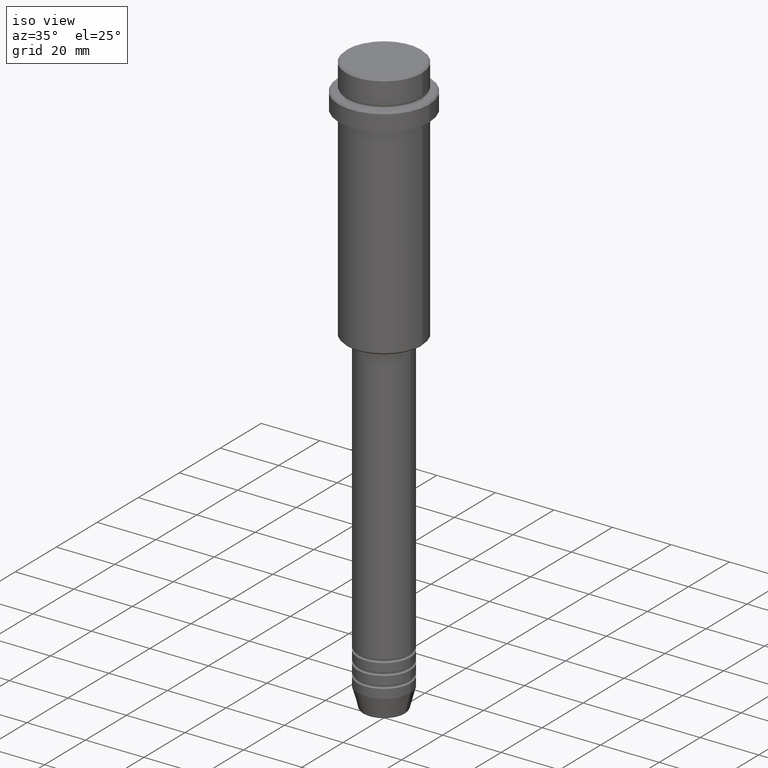
[diagram: clean part render]
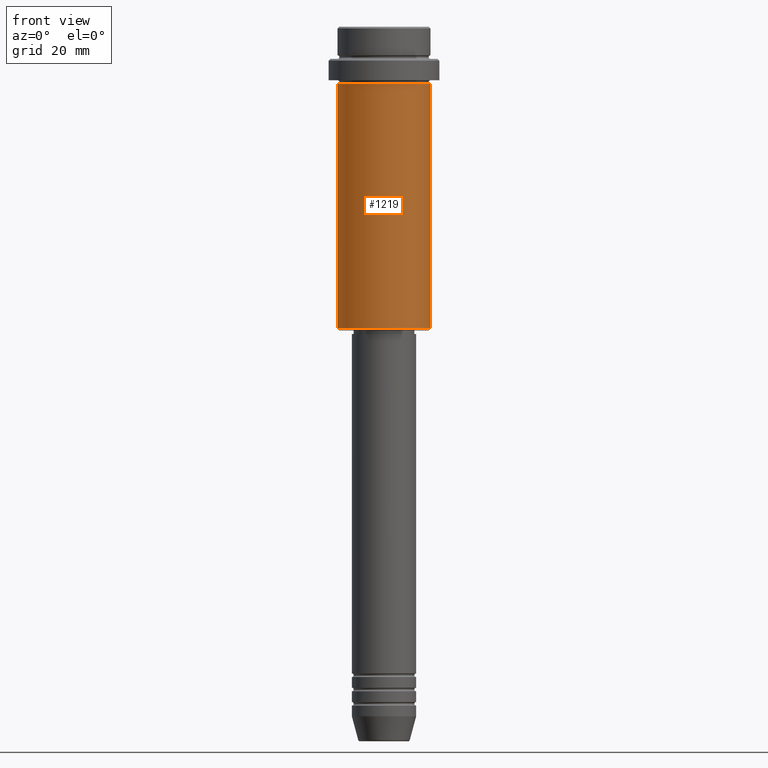
[diagram: tour spotlight — one face highlighted and labeled with its STEP entity id]
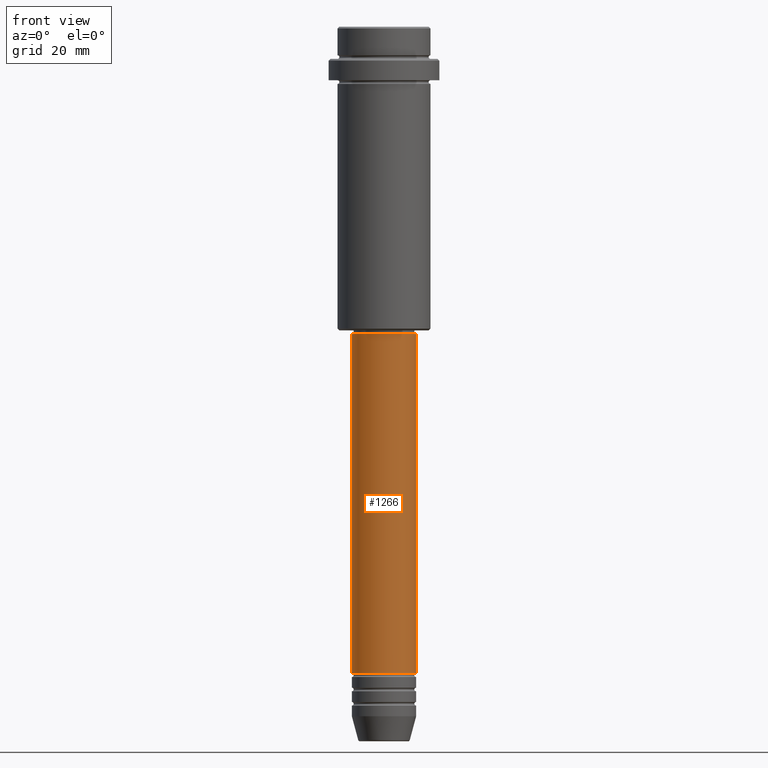
[diagram: tour spotlight — one face highlighted and labeled with its STEP entity id]
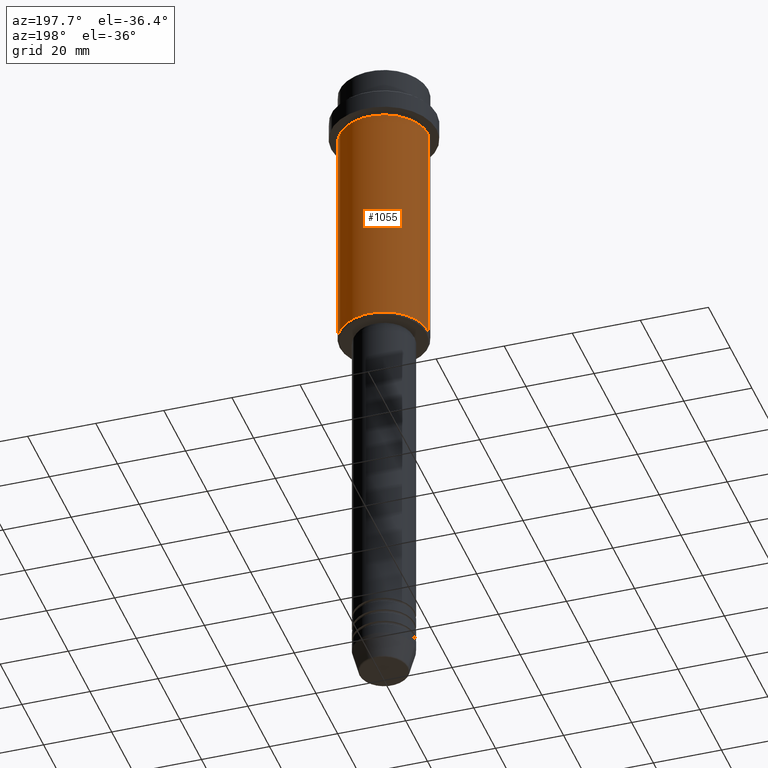
[diagram: tour spotlight — one face highlighted and labeled with its STEP entity id]
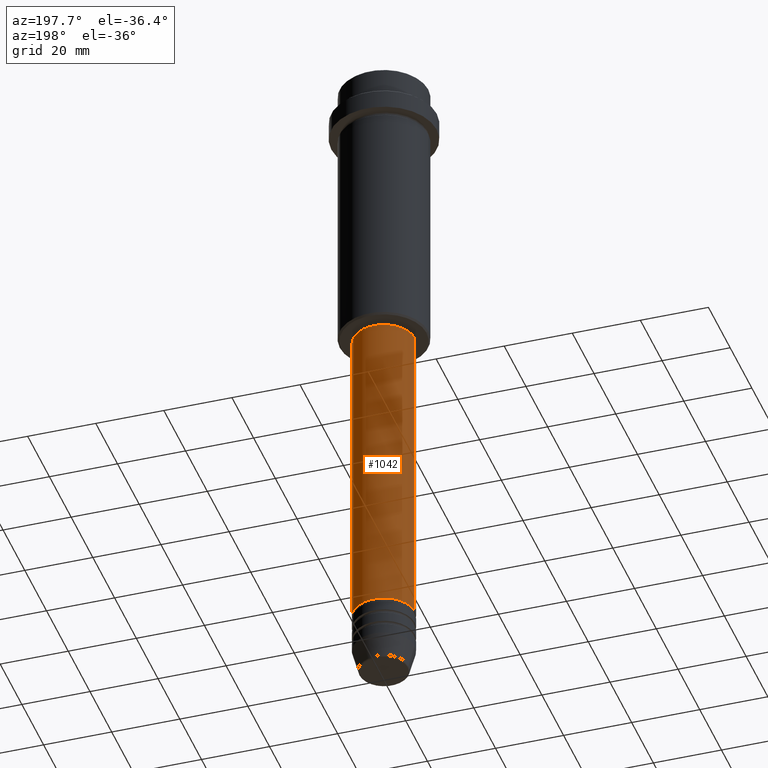
[diagram: tour spotlight — one face highlighted and labeled with its STEP entity id]
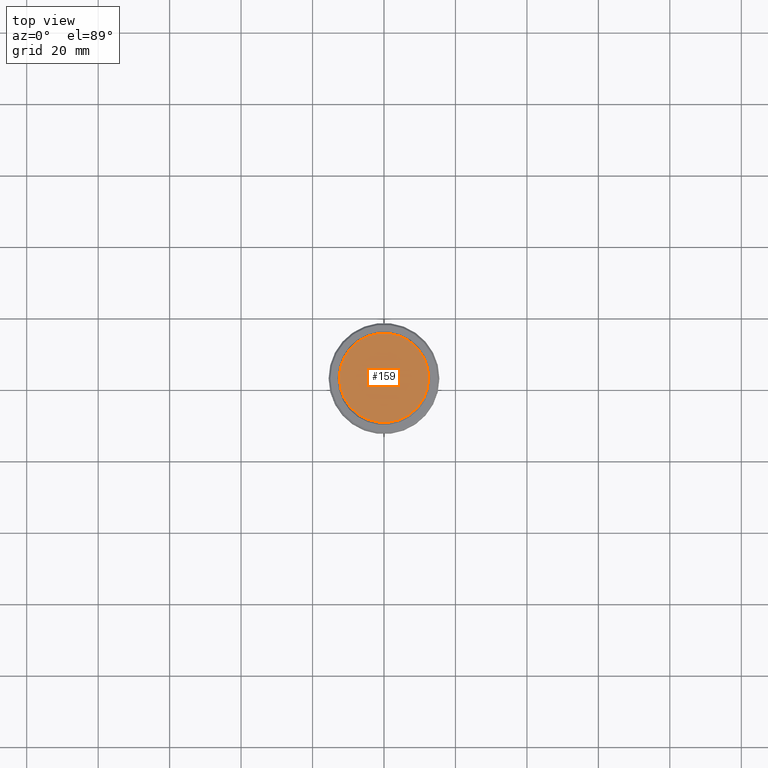
[diagram: tour spotlight — one face highlighted and labeled with its STEP entity id]
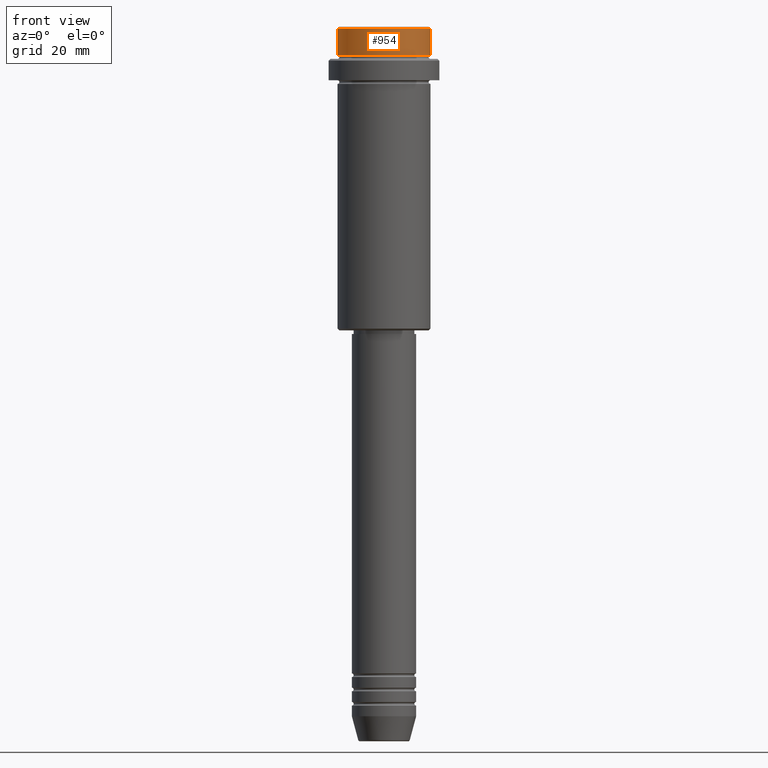
[diagram: tour spotlight — one face highlighted and labeled with its STEP entity id]
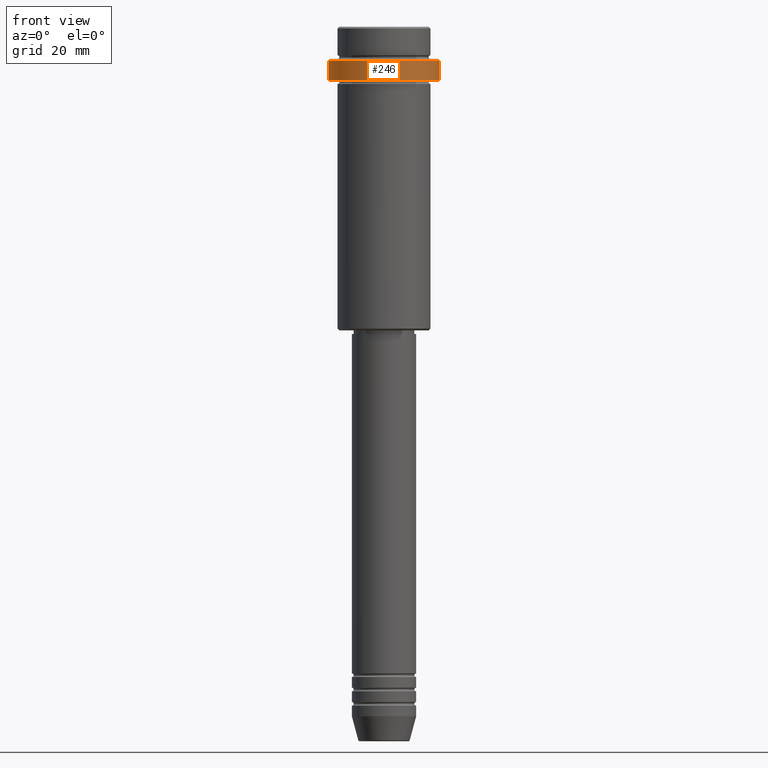
[diagram: tour spotlight — one face highlighted and labeled with its STEP entity id]
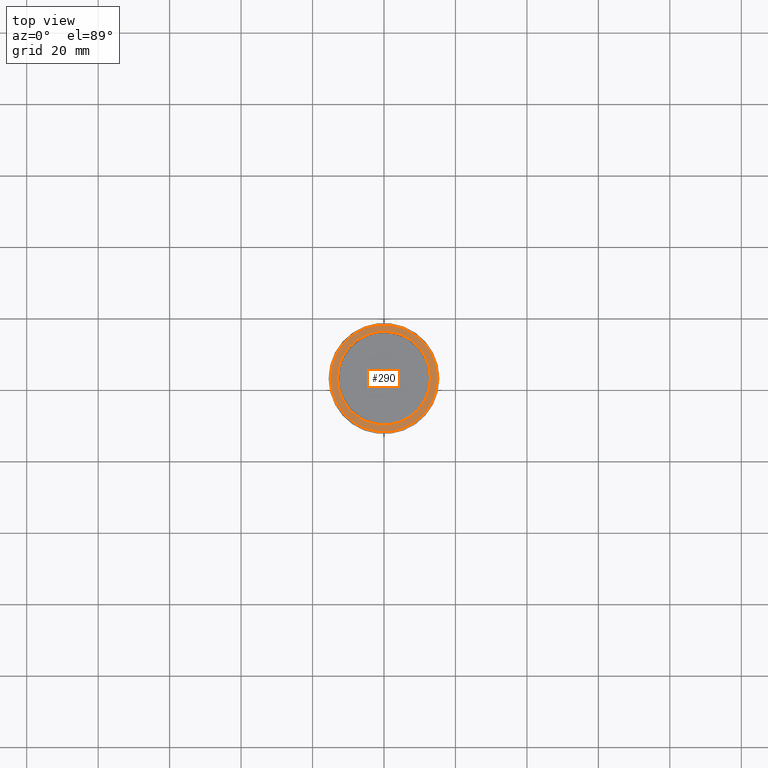
[diagram: tour spotlight — one face highlighted and labeled with its STEP entity id]
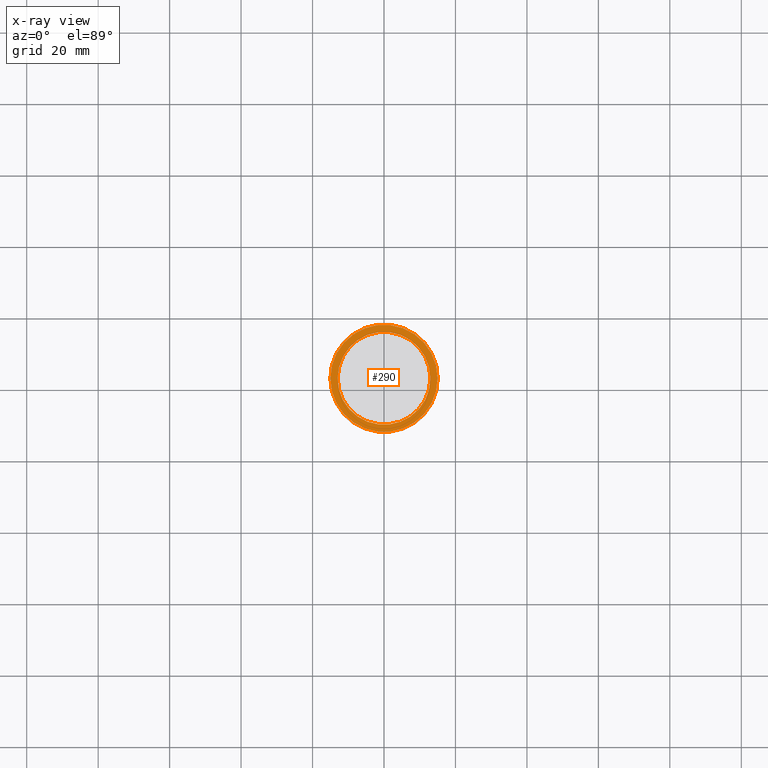
[diagram: x-ray of the same camera — body ghosted, this tour face saturated]
A machine part: a face-by-face anatomy tour. The part has 52 B-rep faces; the first image is the clean iso view, then the 8 largest visible faces are spotlighted one at a time (largest first), each with its STEP entity span.

Face 1 — front view, entity #1219. In plain terms, the highlighted cylindrical surface (partial cylindrical patch) has radius 13 mm, axis along (-0, -0, 1).
Definition (entity closure, byte-faithful):
#71 = CARTESIAN_POINT ( 'NONE',  ( 0.000000000000000000, 0.000000000000000000, -16.00000000000000000 ) ) ;
#98 = CARTESIAN_POINT ( 'NONE',  ( 13.00000000000000000, 0.000000000000000000, -84.50000000000004263 ) ) ;
#121 = DIRECTION ( 'NONE',  ( -1.000000000000000000, 0.000000000000000000, 0.000000000000000000 ) ) ;
#156 = FACE_OUTER_BOUND ( 'NONE', #1251, .T. ) ;
#165 = AXIS2_PLACEMENT_3D ( 'NONE', #71, #663, #1108 ) ;
#262 = VECTOR ( 'NONE', #323, 1000.000000000000000 ) ;
#269 = DIRECTION ( 'NONE',  ( -0.000000000000000000, -0.000000000000000000, 1.000000000000000000 ) ) ;
#294 = VERTEX_POINT ( 'NONE', #641 ) ;
#323 = DIRECTION ( 'NONE',  ( -0.000000000000000000, -0.000000000000000000, 1.000000000000000000 ) ) ;
#363 = VERTEX_POINT ( 'NONE', #1188 ) ;
#367 = CIRCLE ( 'NONE', #165, 13.00000000000000000 ) ;
#422 = CARTESIAN_POINT ( 'NONE',  ( -13.00000000000000000, 1.592040838891559095E-15, 0.000000000000000000 ) ) ;
#451 = EDGE_CURVE ( 'NONE', #476, #715, #874, .T. ) ;
#475 = DIRECTION ( 'NONE',  ( 1.000000000000000000, 0.000000000000000000, 0.000000000000000000 ) ) ;
#476 = VERTEX_POINT ( 'NONE', #586 ) ;
#492 = CARTESIAN_POINT ( 'NONE',  ( 0.000000000000000000, 0.000000000000000000, 0.000000000000000000 ) ) ;
#524 = EDGE_CURVE ( 'NONE', #294, #363, #367, .T. ) ;
#543 = EDGE_CURVE ( 'NONE', #715, #363, #704, .T. ) ;
#586 = CARTESIAN_POINT ( 'NONE',  ( -13.00000000000000000, 1.592040838891559095E-15, -84.50000000000004263 ) ) ;
#599 = CYLINDRICAL_SURFACE ( 'NONE', #1403, 13.00000000000000000 ) ;
#641 = CARTESIAN_POINT ( 'NONE',  ( -13.00000000000000000, 1.592040838891559095E-15, -16.00000000000000000 ) ) ;
#663 = DIRECTION ( 'NONE',  ( -0.000000000000000000, -0.000000000000000000, 1.000000000000000000 ) ) ;
#704 = LINE ( 'NONE', #799, #792 ) ;
#707 = CARTESIAN_POINT ( 'NONE',  ( 0.000000000000000000, 0.000000000000000000, -84.50000000000004263 ) ) ;
#715 = VERTEX_POINT ( 'NONE', #98 ) ;
#716 = EDGE_CURVE ( 'NONE', #476, #294, #1204, .T. ) ;
#747 = AXIS2_PLACEMENT_3D ( 'NONE', #707, #269, #121 ) ;
#792 = VECTOR ( 'NONE', #1123, 1000.000000000000000 ) ;
#799 = CARTESIAN_POINT ( 'NONE',  ( 13.00000000000000000, 0.000000000000000000, 0.000000000000000000 ) ) ;
#860 = ORIENTED_EDGE ( 'NONE', *, *, #543, .T. ) ;
#874 = CIRCLE ( 'NONE', #747, 13.00000000000000000 ) ;
#1034 = ORIENTED_EDGE ( 'NONE', *, *, #524, .F. ) ;
#1059 = DIRECTION ( 'NONE',  ( -0.000000000000000000, -0.000000000000000000, 1.000000000000000000 ) ) ;
#1108 = DIRECTION ( 'NONE',  ( 1.000000000000000000, 0.000000000000000000, 0.000000000000000000 ) ) ;
#1123 = DIRECTION ( 'NONE',  ( -0.000000000000000000, -0.000000000000000000, 1.000000000000000000 ) ) ;
#1171 = ORIENTED_EDGE ( 'NONE', *, *, #451, .T. ) ;
#1188 = CARTESIAN_POINT ( 'NONE',  ( 13.00000000000000000, 0.000000000000000000, -16.00000000000000000 ) ) ;
#1189 = ORIENTED_EDGE ( 'NONE', *, *, #716, .F. ) ;
#1204 = LINE ( 'NONE', #422, #262 ) ;
#1219 = ADVANCED_FACE ( 'NONE', ( #156 ), #599, .T. ) ;
#1251 = EDGE_LOOP ( 'NONE', ( #1189, #1171, #860, #1034 ) ) ;
#1403 = AXIS2_PLACEMENT_3D ( 'NONE', #492, #1059, #475 ) ;

Face 2 — front view, entity #1266. In plain terms, the highlighted cylindrical surface (edge-blend (fillet) strip) has radius 9 mm, axis along (-0, -0, 1).
Definition (entity closure, byte-faithful):
#64 = ORIENTED_EDGE ( 'NONE', *, *, #91, .T. ) ;
#76 = VERTEX_POINT ( 'NONE', #774 ) ;
#91 = EDGE_CURVE ( 'NONE', #76, #465, #1236, .T. ) ;
#223 = EDGE_LOOP ( 'NONE', ( #1147, #839, #64, #1158 ) ) ;
#235 = AXIS2_PLACEMENT_3D ( 'NONE', #602, #474, #1043 ) ;
#350 = EDGE_CURVE ( 'NONE', #568, #465, #1132, .T. ) ;
#351 = CARTESIAN_POINT ( 'NONE',  ( 9.000000000000001776, 0.000000000000000000, -86.00000000000000000 ) ) ;
#405 = DIRECTION ( 'NONE',  ( 1.000000000000000000, 0.000000000000000000, 0.000000000000000000 ) ) ;
#406 = VERTEX_POINT ( 'NONE', #518 ) ;
#415 = CARTESIAN_POINT ( 'NONE',  ( 0.000000000000000000, 0.000000000000000000, -86.00000000000000000 ) ) ;
#427 = DIRECTION ( 'NONE',  ( -0.000000000000000000, -0.000000000000000000, 1.000000000000000000 ) ) ;
#465 = VERTEX_POINT ( 'NONE', #351 ) ;
#474 = DIRECTION ( 'NONE',  ( -0.000000000000000000, -0.000000000000000000, 1.000000000000000000 ) ) ;
#484 = CYLINDRICAL_SURFACE ( 'NONE', #235, 9.000000000000001776 ) ;
#491 = VECTOR ( 'NONE', #551, 1000.000000000000000 ) ;
#518 = CARTESIAN_POINT ( 'NONE',  ( -9.000000000000000000, 1.102182119232617714E-15, -180.9999999999999147 ) ) ;
#544 = LINE ( 'NONE', #985, #1377 ) ;
#551 = DIRECTION ( 'NONE',  ( -0.000000000000000000, -0.000000000000000000, 1.000000000000000000 ) ) ;
#568 = VERTEX_POINT ( 'NONE', #583 ) ;
#583 = CARTESIAN_POINT ( 'NONE',  ( -9.000000000000001776, 1.102182119232617911E-15, -86.00000000000000000 ) ) ;
#602 = CARTESIAN_POINT ( 'NONE',  ( 0.000000000000000000, 0.000000000000000000, 0.000000000000000000 ) ) ;
#656 = CARTESIAN_POINT ( 'NONE',  ( 0.000000000000000000, 0.000000000000000000, -180.9999999999999147 ) ) ;
#774 = CARTESIAN_POINT ( 'NONE',  ( 9.000000000000000000, 0.000000000000000000, -180.9999999999999147 ) ) ;
#839 = ORIENTED_EDGE ( 'NONE', *, *, #1338, .T. ) ;
#873 = DIRECTION ( 'NONE',  ( 1.000000000000000000, 0.000000000000000000, 0.000000000000000000 ) ) ;
#925 = AXIS2_PLACEMENT_3D ( 'NONE', #656, #427, #873 ) ;
#985 = CARTESIAN_POINT ( 'NONE',  ( -9.000000000000001776, 1.102182119232617911E-15, 0.000000000000000000 ) ) ;
#1043 = DIRECTION ( 'NONE',  ( 1.000000000000000000, 0.000000000000000000, 0.000000000000000000 ) ) ;
#1132 = CIRCLE ( 'NONE', #1160, 9.000000000000001776 ) ;
#1147 = ORIENTED_EDGE ( 'NONE', *, *, #1325, .F. ) ;
#1158 = ORIENTED_EDGE ( 'NONE', *, *, #350, .F. ) ;
#1160 = AXIS2_PLACEMENT_3D ( 'NONE', #415, #1173, #405 ) ;
#1173 = DIRECTION ( 'NONE',  ( -0.000000000000000000, -0.000000000000000000, 1.000000000000000000 ) ) ;
#1177 = CIRCLE ( 'NONE', #925, 9.000000000000000000 ) ;
#1230 = CARTESIAN_POINT ( 'NONE',  ( 9.000000000000001776, 0.000000000000000000, 0.000000000000000000 ) ) ;
#1236 = LINE ( 'NONE', #1230, #491 ) ;
#1266 = ADVANCED_FACE ( 'NONE', ( #1267 ), #484, .T. ) ;
#1267 = FACE_OUTER_BOUND ( 'NONE', #223, .T. ) ;
#1325 = EDGE_CURVE ( 'NONE', #406, #568, #544, .T. ) ;
#1338 = EDGE_CURVE ( 'NONE', #406, #76, #1177, .T. ) ;
#1377 = VECTOR ( 'NONE', #1414, 1000.000000000000000 ) ;
#1414 = DIRECTION ( 'NONE',  ( -0.000000000000000000, -0.000000000000000000, 1.000000000000000000 ) ) ;

Face 3 — auxiliary view, entity #1055. In plain terms, the highlighted cylindrical surface (partial cylindrical patch) has radius 13 mm, axis along (-0, -0, 1).
Definition (entity closure, byte-faithful):
#56 = ORIENTED_EDGE ( 'NONE', *, *, #716, .T. ) ;
#81 = CIRCLE ( 'NONE', #1115, 13.00000000000000000 ) ;
#85 = DIRECTION ( 'NONE',  ( 1.000000000000000000, 0.000000000000000000, 0.000000000000000000 ) ) ;
#98 = CARTESIAN_POINT ( 'NONE',  ( 13.00000000000000000, 0.000000000000000000, -84.50000000000004263 ) ) ;
#206 = DIRECTION ( 'NONE',  ( -0.000000000000000000, -0.000000000000000000, 1.000000000000000000 ) ) ;
#217 = CIRCLE ( 'NONE', #974, 13.00000000000000000 ) ;
#262 = VECTOR ( 'NONE', #323, 1000.000000000000000 ) ;
#294 = VERTEX_POINT ( 'NONE', #641 ) ;
#313 = EDGE_CURVE ( 'NONE', #363, #294, #217, .T. ) ;
#323 = DIRECTION ( 'NONE',  ( -0.000000000000000000, -0.000000000000000000, 1.000000000000000000 ) ) ;
#324 = FACE_OUTER_BOUND ( 'NONE', #794, .T. ) ;
#363 = VERTEX_POINT ( 'NONE', #1188 ) ;
#401 = ORIENTED_EDGE ( 'NONE', *, *, #313, .F. ) ;
#418 = CARTESIAN_POINT ( 'NONE',  ( 0.000000000000000000, 0.000000000000000000, 0.000000000000000000 ) ) ;
#422 = CARTESIAN_POINT ( 'NONE',  ( -13.00000000000000000, 1.592040838891559095E-15, 0.000000000000000000 ) ) ;
#476 = VERTEX_POINT ( 'NONE', #586 ) ;
#543 = EDGE_CURVE ( 'NONE', #715, #363, #704, .T. ) ;
#586 = CARTESIAN_POINT ( 'NONE',  ( -13.00000000000000000, 1.592040838891559095E-15, -84.50000000000004263 ) ) ;
#609 = AXIS2_PLACEMENT_3D ( 'NONE', #418, #772, #976 ) ;
#641 = CARTESIAN_POINT ( 'NONE',  ( -13.00000000000000000, 1.592040838891559095E-15, -16.00000000000000000 ) ) ;
#654 = ORIENTED_EDGE ( 'NONE', *, *, #699, .T. ) ;
#659 = DIRECTION ( 'NONE',  ( -0.000000000000000000, -0.000000000000000000, 1.000000000000000000 ) ) ;
#699 = EDGE_CURVE ( 'NONE', #715, #476, #81, .T. ) ;
#704 = LINE ( 'NONE', #799, #792 ) ;
#715 = VERTEX_POINT ( 'NONE', #98 ) ;
#716 = EDGE_CURVE ( 'NONE', #476, #294, #1204, .T. ) ;
#756 = CARTESIAN_POINT ( 'NONE',  ( 0.000000000000000000, 0.000000000000000000, -84.50000000000004263 ) ) ;
#772 = DIRECTION ( 'NONE',  ( -0.000000000000000000, -0.000000000000000000, 1.000000000000000000 ) ) ;
#792 = VECTOR ( 'NONE', #1123, 1000.000000000000000 ) ;
#794 = EDGE_LOOP ( 'NONE', ( #654, #56, #401, #1386 ) ) ;
#799 = CARTESIAN_POINT ( 'NONE',  ( 13.00000000000000000, 0.000000000000000000, 0.000000000000000000 ) ) ;
#974 = AXIS2_PLACEMENT_3D ( 'NONE', #1084, #659, #85 ) ;
#976 = DIRECTION ( 'NONE',  ( 1.000000000000000000, 0.000000000000000000, 0.000000000000000000 ) ) ;
#1055 = ADVANCED_FACE ( 'NONE', ( #324 ), #1293, .T. ) ;
#1084 = CARTESIAN_POINT ( 'NONE',  ( 0.000000000000000000, 0.000000000000000000, -16.00000000000000000 ) ) ;
#1090 = DIRECTION ( 'NONE',  ( -1.000000000000000000, 0.000000000000000000, 0.000000000000000000 ) ) ;
#1115 = AXIS2_PLACEMENT_3D ( 'NONE', #756, #206, #1090 ) ;
#1123 = DIRECTION ( 'NONE',  ( -0.000000000000000000, -0.000000000000000000, 1.000000000000000000 ) ) ;
#1188 = CARTESIAN_POINT ( 'NONE',  ( 13.00000000000000000, 0.000000000000000000, -16.00000000000000000 ) ) ;
#1204 = LINE ( 'NONE', #422, #262 ) ;
#1293 = CYLINDRICAL_SURFACE ( 'NONE', #609, 13.00000000000000000 ) ;
#1386 = ORIENTED_EDGE ( 'NONE', *, *, #543, .F. ) ;

Face 4 — auxiliary view, entity #1042. In plain terms, the highlighted cylindrical surface (edge-blend (fillet) strip) has radius 9 mm, axis along (-0, -0, 1).
Definition (entity closure, byte-faithful):
#29 = CIRCLE ( 'NONE', #390, 9.000000000000000000 ) ;
#76 = VERTEX_POINT ( 'NONE', #774 ) ;
#91 = EDGE_CURVE ( 'NONE', #76, #465, #1236, .T. ) ;
#174 = DIRECTION ( 'NONE',  ( -0.000000000000000000, -0.000000000000000000, 1.000000000000000000 ) ) ;
#188 = CIRCLE ( 'NONE', #285, 9.000000000000001776 ) ;
#219 = CARTESIAN_POINT ( 'NONE',  ( 0.000000000000000000, 0.000000000000000000, -86.00000000000000000 ) ) ;
#278 = FACE_OUTER_BOUND ( 'NONE', #888, .T. ) ;
#285 = AXIS2_PLACEMENT_3D ( 'NONE', #219, #545, #463 ) ;
#351 = CARTESIAN_POINT ( 'NONE',  ( 9.000000000000001776, 0.000000000000000000, -86.00000000000000000 ) ) ;
#390 = AXIS2_PLACEMENT_3D ( 'NONE', #998, #174, #993 ) ;
#406 = VERTEX_POINT ( 'NONE', #518 ) ;
#428 = DIRECTION ( 'NONE',  ( 1.000000000000000000, 0.000000000000000000, 0.000000000000000000 ) ) ;
#463 = DIRECTION ( 'NONE',  ( 1.000000000000000000, 0.000000000000000000, 0.000000000000000000 ) ) ;
#465 = VERTEX_POINT ( 'NONE', #351 ) ;
#491 = VECTOR ( 'NONE', #551, 1000.000000000000000 ) ;
#518 = CARTESIAN_POINT ( 'NONE',  ( -9.000000000000000000, 1.102182119232617714E-15, -180.9999999999999147 ) ) ;
#544 = LINE ( 'NONE', #985, #1377 ) ;
#545 = DIRECTION ( 'NONE',  ( -0.000000000000000000, -0.000000000000000000, 1.000000000000000000 ) ) ;
#551 = DIRECTION ( 'NONE',  ( -0.000000000000000000, -0.000000000000000000, 1.000000000000000000 ) ) ;
#568 = VERTEX_POINT ( 'NONE', #583 ) ;
#583 = CARTESIAN_POINT ( 'NONE',  ( -9.000000000000001776, 1.102182119232617911E-15, -86.00000000000000000 ) ) ;
#639 = DIRECTION ( 'NONE',  ( -0.000000000000000000, -0.000000000000000000, 1.000000000000000000 ) ) ;
#774 = CARTESIAN_POINT ( 'NONE',  ( 9.000000000000000000, 0.000000000000000000, -180.9999999999999147 ) ) ;
#784 = ORIENTED_EDGE ( 'NONE', *, *, #1250, .F. ) ;
#888 = EDGE_LOOP ( 'NONE', ( #1317, #1119, #784, #1279 ) ) ;
#939 = CYLINDRICAL_SURFACE ( 'NONE', #1110, 9.000000000000001776 ) ;
#985 = CARTESIAN_POINT ( 'NONE',  ( -9.000000000000001776, 1.102182119232617911E-15, 0.000000000000000000 ) ) ;
#993 = DIRECTION ( 'NONE',  ( 1.000000000000000000, 0.000000000000000000, 0.000000000000000000 ) ) ;
#998 = CARTESIAN_POINT ( 'NONE',  ( 0.000000000000000000, 0.000000000000000000, -180.9999999999999147 ) ) ;
#1042 = ADVANCED_FACE ( 'NONE', ( #278 ), #939, .T. ) ;
#1110 = AXIS2_PLACEMENT_3D ( 'NONE', #1416, #639, #428 ) ;
#1119 = ORIENTED_EDGE ( 'NONE', *, *, #1325, .T. ) ;
#1230 = CARTESIAN_POINT ( 'NONE',  ( 9.000000000000001776, 0.000000000000000000, 0.000000000000000000 ) ) ;
#1236 = LINE ( 'NONE', #1230, #491 ) ;
#1250 = EDGE_CURVE ( 'NONE', #465, #568, #188, .T. ) ;
#1279 = ORIENTED_EDGE ( 'NONE', *, *, #91, .F. ) ;
#1298 = EDGE_CURVE ( 'NONE', #76, #406, #29, .T. ) ;
#1317 = ORIENTED_EDGE ( 'NONE', *, *, #1298, .T. ) ;
#1325 = EDGE_CURVE ( 'NONE', #406, #568, #544, .T. ) ;
#1377 = VECTOR ( 'NONE', #1414, 1000.000000000000000 ) ;
#1414 = DIRECTION ( 'NONE',  ( -0.000000000000000000, -0.000000000000000000, 1.000000000000000000 ) ) ;
#1416 = CARTESIAN_POINT ( 'NONE',  ( 0.000000000000000000, 0.000000000000000000, 0.000000000000000000 ) ) ;

Face 5 — top view, entity #159. In plain terms, the highlighted planar face has unit normal (0, -0, 1).
Definition (entity closure, byte-faithful):
#31 = FACE_OUTER_BOUND ( 'NONE', #1183, .T. ) ;
#116 = DIRECTION ( 'NONE',  ( -0.000000000000000000, -0.000000000000000000, 1.000000000000000000 ) ) ;
#159 = ADVANCED_FACE ( 'NONE', ( #31 ), #1117, .T. ) ;
#336 = DIRECTION ( 'NONE',  ( -0.000000000000000000, -0.000000000000000000, 1.000000000000000000 ) ) ;
#416 = ORIENTED_EDGE ( 'NONE', *, *, #736, .T. ) ;
#464 = CARTESIAN_POINT ( 'NONE',  ( 0.000000000000000000, 0.000000000000000000, 0.000000000000000000 ) ) ;
#472 = DIRECTION ( 'NONE',  ( 0.000000000000000000, -0.000000000000000000, 1.000000000000000000 ) ) ;
#530 = CIRCLE ( 'NONE', #1175, 12.49999999999998579 ) ;
#594 = VERTEX_POINT ( 'NONE', #1351 ) ;
#670 = DIRECTION ( 'NONE',  ( 1.000000000000000000, 0.000000000000000000, 0.000000000000000000 ) ) ;
#677 = AXIS2_PLACEMENT_3D ( 'NONE', #464, #472, #670 ) ;
#695 = AXIS2_PLACEMENT_3D ( 'NONE', #910, #116, #902 ) ;
#736 = EDGE_CURVE ( 'NONE', #1202, #594, #1308, .T. ) ;
#820 = ORIENTED_EDGE ( 'NONE', *, *, #887, .T. ) ;
#887 = EDGE_CURVE ( 'NONE', #594, #1202, #530, .T. ) ;
#902 = DIRECTION ( 'NONE',  ( 1.000000000000000000, 0.000000000000000000, 0.000000000000000000 ) ) ;
#910 = CARTESIAN_POINT ( 'NONE',  ( 0.000000000000000000, 0.000000000000000000, 0.000000000000000000 ) ) ;
#1013 = DIRECTION ( 'NONE',  ( 1.000000000000000000, 0.000000000000000000, 0.000000000000000000 ) ) ;
#1117 = PLANE ( 'NONE',  #677 ) ;
#1175 = AXIS2_PLACEMENT_3D ( 'NONE', #1355, #336, #1013 ) ;
#1183 = EDGE_LOOP ( 'NONE', ( #820, #416 ) ) ;
#1202 = VERTEX_POINT ( 'NONE', #1260 ) ;
#1260 = CARTESIAN_POINT ( 'NONE',  ( 12.49999999999998579, 1.561424668912874125E-15, 0.000000000000000000 ) ) ;
#1308 = CIRCLE ( 'NONE', #695, 12.49999999999998579 ) ;
#1351 = CARTESIAN_POINT ( 'NONE',  ( -12.49999999999998579, 0.000000000000000000, 0.000000000000000000 ) ) ;
#1355 = CARTESIAN_POINT ( 'NONE',  ( 0.000000000000000000, 0.000000000000000000, 0.000000000000000000 ) ) ;

Face 6 — front view, entity #954. In plain terms, the highlighted cylindrical surface (partial cylindrical patch) has radius 13 mm, axis along (-0, -0, 1).
Definition (entity closure, byte-faithful):
#32 = VECTOR ( 'NONE', #995, 1000.000000000000000 ) ;
#35 = CARTESIAN_POINT ( 'NONE',  ( 0.000000000000000000, 0.000000000000000000, -0.5000000000000037748 ) ) ;
#53 = CARTESIAN_POINT ( 'NONE',  ( 12.99999999999999822, 0.000000000000000000, -7.999999999999998224 ) ) ;
#109 = DIRECTION ( 'NONE',  ( -0.000000000000000000, -0.000000000000000000, 1.000000000000000000 ) ) ;
#112 = FACE_OUTER_BOUND ( 'NONE', #115, .T. ) ;
#115 = EDGE_LOOP ( 'NONE', ( #1169, #744, #541, #359 ) ) ;
#118 = DIRECTION ( 'NONE',  ( 0.000000000000000000, 0.000000000000000000, -1.000000000000000000 ) ) ;
#124 = LINE ( 'NONE', #1321, #1050 ) ;
#200 = EDGE_CURVE ( 'NONE', #1272, #978, #439, .T. ) ;
#205 = EDGE_CURVE ( 'NONE', #1287, #1167, #124, .T. ) ;
#286 = CARTESIAN_POINT ( 'NONE',  ( -12.99999999999999822, 1.592040838891558898E-15, -7.999999999999998224 ) ) ;
#291 = CARTESIAN_POINT ( 'NONE',  ( -12.99999999999999822, 1.592040838891558898E-15, -0.5000000000000037748 ) ) ;
#359 = ORIENTED_EDGE ( 'NONE', *, *, #538, .T. ) ;
#361 = EDGE_CURVE ( 'NONE', #1287, #1272, #702, .T. ) ;
#439 = LINE ( 'NONE', #1206, #32 ) ;
#538 = EDGE_CURVE ( 'NONE', #978, #1167, #969, .T. ) ;
#541 = ORIENTED_EDGE ( 'NONE', *, *, #200, .T. ) ;
#552 = AXIS2_PLACEMENT_3D ( 'NONE', #35, #118, #1240 ) ;
#655 = CARTESIAN_POINT ( 'NONE',  ( 12.99999999999999822, 0.000000000000000000, -0.5000000000000037748 ) ) ;
#702 = CIRCLE ( 'NONE', #1246, 12.99999999999999822 ) ;
#724 = AXIS2_PLACEMENT_3D ( 'NONE', #1086, #1320, #963 ) ;
#744 = ORIENTED_EDGE ( 'NONE', *, *, #361, .T. ) ;
#754 = CARTESIAN_POINT ( 'NONE',  ( 0.000000000000000000, 0.000000000000000000, -7.999999999999998224 ) ) ;
#787 = DIRECTION ( 'NONE',  ( -0.000000000000000000, -0.000000000000000000, 1.000000000000000000 ) ) ;
#848 = DIRECTION ( 'NONE',  ( 1.000000000000000000, 0.000000000000000000, 0.000000000000000000 ) ) ;
#884 = CYLINDRICAL_SURFACE ( 'NONE', #724, 12.99999999999999822 ) ;
#954 = ADVANCED_FACE ( 'NONE', ( #112 ), #884, .T. ) ;
#963 = DIRECTION ( 'NONE',  ( 1.000000000000000000, 0.000000000000000000, 0.000000000000000000 ) ) ;
#969 = CIRCLE ( 'NONE', #552, 12.99999999999999822 ) ;
#978 = VERTEX_POINT ( 'NONE', #655 ) ;
#995 = DIRECTION ( 'NONE',  ( -0.000000000000000000, -0.000000000000000000, 1.000000000000000000 ) ) ;
#1050 = VECTOR ( 'NONE', #787, 1000.000000000000000 ) ;
#1086 = CARTESIAN_POINT ( 'NONE',  ( 0.000000000000000000, 0.000000000000000000, 0.000000000000000000 ) ) ;
#1167 = VERTEX_POINT ( 'NONE', #291 ) ;
#1169 = ORIENTED_EDGE ( 'NONE', *, *, #205, .F. ) ;
#1206 = CARTESIAN_POINT ( 'NONE',  ( 12.99999999999999822, 0.000000000000000000, 0.000000000000000000 ) ) ;
#1240 = DIRECTION ( 'NONE',  ( 1.000000000000000000, 0.000000000000000000, 0.000000000000000000 ) ) ;
#1246 = AXIS2_PLACEMENT_3D ( 'NONE', #754, #109, #848 ) ;
#1272 = VERTEX_POINT ( 'NONE', #53 ) ;
#1287 = VERTEX_POINT ( 'NONE', #286 ) ;
#1320 = DIRECTION ( 'NONE',  ( -0.000000000000000000, -0.000000000000000000, 1.000000000000000000 ) ) ;
#1321 = CARTESIAN_POINT ( 'NONE',  ( -12.99999999999999822, 1.592040838891558898E-15, 0.000000000000000000 ) ) ;

Face 7 — front view, entity #246. In plain terms, the highlighted cylindrical surface (partial cylindrical patch) has radius 15.5 mm, axis along (-0, -0, 1).
Definition (entity closure, byte-faithful):
#27 = AXIS2_PLACEMENT_3D ( 'NONE', #41, #566, #1004 ) ;
#41 = CARTESIAN_POINT ( 'NONE',  ( 0.000000000000000000, 0.000000000000000000, -15.00000000000000178 ) ) ;
#61 = EDGE_CURVE ( 'NONE', #737, #1054, #84, .T. ) ;
#84 = LINE ( 'NONE', #209, #460 ) ;
#149 = CARTESIAN_POINT ( 'NONE',  ( 0.000000000000000000, 0.000000000000000000, 0.000000000000000000 ) ) ;
#209 = CARTESIAN_POINT ( 'NONE',  ( -15.50000000000000000, 1.898202538678397557E-15, 0.000000000000000000 ) ) ;
#211 = VECTOR ( 'NONE', #386, 1000.000000000000000 ) ;
#246 = ADVANCED_FACE ( 'NONE', ( #811 ), #1353, .T. ) ;
#309 = VERTEX_POINT ( 'NONE', #778 ) ;
#386 = DIRECTION ( 'NONE',  ( -0.000000000000000000, -0.000000000000000000, 1.000000000000000000 ) ) ;
#411 = DIRECTION ( 'NONE',  ( -0.000000000000000000, -0.000000000000000000, 1.000000000000000000 ) ) ;
#460 = VECTOR ( 'NONE', #411, 1000.000000000000000 ) ;
#510 = CIRCLE ( 'NONE', #750, 15.50000000000000000 ) ;
#566 = DIRECTION ( 'NONE',  ( -0.000000000000000000, -0.000000000000000000, 1.000000000000000000 ) ) ;
#592 = DIRECTION ( 'NONE',  ( -0.000000000000000000, -0.000000000000000000, 1.000000000000000000 ) ) ;
#610 = AXIS2_PLACEMENT_3D ( 'NONE', #149, #592, #1243 ) ;
#734 = DIRECTION ( 'NONE',  ( 0.000000000000000000, 0.000000000000000000, -1.000000000000000000 ) ) ;
#737 = VERTEX_POINT ( 'NONE', #808 ) ;
#750 = AXIS2_PLACEMENT_3D ( 'NONE', #1373, #734, #990 ) ;
#778 = CARTESIAN_POINT ( 'NONE',  ( 15.50000000000000000, 0.000000000000000000, -9.499999999999985789 ) ) ;
#808 = CARTESIAN_POINT ( 'NONE',  ( -15.50000000000000000, 1.898202538678397557E-15, -15.00000000000000178 ) ) ;
#811 = FACE_OUTER_BOUND ( 'NONE', #1342, .T. ) ;
#842 = EDGE_CURVE ( 'NONE', #1410, #309, #949, .T. ) ;
#855 = CARTESIAN_POINT ( 'NONE',  ( -15.50000000000000000, 1.898202538678397557E-15, -9.499999999999985789 ) ) ;
#861 = EDGE_CURVE ( 'NONE', #737, #1410, #970, .T. ) ;
#920 = CARTESIAN_POINT ( 'NONE',  ( 15.50000000000000000, 0.000000000000000000, -15.00000000000000178 ) ) ;
#949 = LINE ( 'NONE', #1369, #211 ) ;
#970 = CIRCLE ( 'NONE', #27, 15.50000000000000000 ) ;
#990 = DIRECTION ( 'NONE',  ( 1.000000000000000000, 0.000000000000000000, 0.000000000000000000 ) ) ;
#1004 = DIRECTION ( 'NONE',  ( 1.000000000000000000, 0.000000000000000000, 0.000000000000000000 ) ) ;
#1054 = VERTEX_POINT ( 'NONE', #855 ) ;
#1102 = EDGE_CURVE ( 'NONE', #309, #1054, #510, .T. ) ;
#1231 = ORIENTED_EDGE ( 'NONE', *, *, #861, .T. ) ;
#1238 = ORIENTED_EDGE ( 'NONE', *, *, #1102, .T. ) ;
#1243 = DIRECTION ( 'NONE',  ( 1.000000000000000000, 0.000000000000000000, 0.000000000000000000 ) ) ;
#1342 = EDGE_LOOP ( 'NONE', ( #1362, #1231, #1361, #1238 ) ) ;
#1353 = CYLINDRICAL_SURFACE ( 'NONE', #610, 15.50000000000000000 ) ;
#1361 = ORIENTED_EDGE ( 'NONE', *, *, #842, .T. ) ;
#1362 = ORIENTED_EDGE ( 'NONE', *, *, #61, .F. ) ;
#1369 = CARTESIAN_POINT ( 'NONE',  ( 15.50000000000000000, 0.000000000000000000, 0.000000000000000000 ) ) ;
#1373 = CARTESIAN_POINT ( 'NONE',  ( 0.000000000000000000, 0.000000000000000000, -9.499999999999985789 ) ) ;
#1410 = VERTEX_POINT ( 'NONE', #920 ) ;

Face 8 — top view, entity #290. An x-ray twin of the same camera follows (body ghosted, this face saturated) — the face is partly hidden behind the body. In plain terms, the highlighted planar face has unit normal (0, -0, 1).
Definition (entity closure, byte-faithful):
#9 = CIRCLE ( 'NONE', #1162, 12.99999999999999467 ) ;
#18 = ORIENTED_EDGE ( 'NONE', *, *, #1406, .T. ) ;
#54 = AXIS2_PLACEMENT_3D ( 'NONE', #1073, #301, #726 ) ;
#108 = DIRECTION ( 'NONE',  ( 1.000000000000000000, 0.000000000000000000, 0.000000000000000000 ) ) ;
#125 = CARTESIAN_POINT ( 'NONE',  ( 0.000000000000000000, 0.000000000000000000, -9.000000000000001776 ) ) ;
#143 = CIRCLE ( 'NONE', #54, 12.99999999999999467 ) ;
#160 = EDGE_LOOP ( 'NONE', ( #722, #1296 ) ) ;
#208 = CARTESIAN_POINT ( 'NONE',  ( -12.99999999999999467, 1.592040838891558504E-15, -9.000000000000001776 ) ) ;
#241 = DIRECTION ( 'NONE',  ( -0.000000000000000000, -0.000000000000000000, 1.000000000000000000 ) ) ;
#290 = ADVANCED_FACE ( 'NONE', ( #635, #540 ), #1399, .T. ) ;
#301 = DIRECTION ( 'NONE',  ( 0.000000000000000000, 0.000000000000000000, -1.000000000000000000 ) ) ;
#433 = CARTESIAN_POINT ( 'NONE',  ( 0.000000000000000000, 12.49999999999999289, -9.000000000000001776 ) ) ;
#466 = DIRECTION ( 'NONE',  ( 1.000000000000000000, 0.000000000000000000, 0.000000000000000000 ) ) ;
#493 = AXIS2_PLACEMENT_3D ( 'NONE', #1307, #241, #466 ) ;
#534 = CIRCLE ( 'NONE', #1332, 15.00000000000001421 ) ;
#540 = FACE_BOUND ( 'NONE', #843, .T. ) ;
#635 = FACE_OUTER_BOUND ( 'NONE', #160, .T. ) ;
#681 = VERTEX_POINT ( 'NONE', #1265 ) ;
#718 = DIRECTION ( 'NONE',  ( 1.000000000000000000, 0.000000000000000000, 0.000000000000000000 ) ) ;
#720 = EDGE_CURVE ( 'NONE', #1278, #681, #1179, .T. ) ;
#722 = ORIENTED_EDGE ( 'NONE', *, *, #1065, .T. ) ;
#726 = DIRECTION ( 'NONE',  ( 1.000000000000000000, 0.000000000000000000, 0.000000000000000000 ) ) ;
#730 = CARTESIAN_POINT ( 'NONE',  ( 15.00000000000001421, 1.867586368699714559E-15, -9.000000000000001776 ) ) ;
#817 = AXIS2_PLACEMENT_3D ( 'NONE', #433, #1088, #859 ) ;
#843 = EDGE_LOOP ( 'NONE', ( #18, #1417 ) ) ;
#859 = DIRECTION ( 'NONE',  ( 1.000000000000000000, 0.000000000000000000, 0.000000000000000000 ) ) ;
#869 = DIRECTION ( 'NONE',  ( -0.000000000000000000, -0.000000000000000000, 1.000000000000000000 ) ) ;
#930 = CARTESIAN_POINT ( 'NONE',  ( 0.000000000000000000, 0.000000000000000000, -9.000000000000001776 ) ) ;
#957 = VERTEX_POINT ( 'NONE', #1394 ) ;
#1065 = EDGE_CURVE ( 'NONE', #681, #1278, #534, .T. ) ;
#1073 = CARTESIAN_POINT ( 'NONE',  ( 0.000000000000000000, 0.000000000000000000, -9.000000000000001776 ) ) ;
#1088 = DIRECTION ( 'NONE',  ( 0.000000000000000000, -0.000000000000000000, 1.000000000000000000 ) ) ;
#1162 = AXIS2_PLACEMENT_3D ( 'NONE', #930, #1258, #718 ) ;
#1179 = CIRCLE ( 'NONE', #493, 15.00000000000001421 ) ;
#1258 = DIRECTION ( 'NONE',  ( 0.000000000000000000, 0.000000000000000000, -1.000000000000000000 ) ) ;
#1265 = CARTESIAN_POINT ( 'NONE',  ( -15.00000000000001421, 0.000000000000000000, -9.000000000000001776 ) ) ;
#1278 = VERTEX_POINT ( 'NONE', #730 ) ;
#1296 = ORIENTED_EDGE ( 'NONE', *, *, #720, .T. ) ;
#1300 = VERTEX_POINT ( 'NONE', #208 ) ;
#1307 = CARTESIAN_POINT ( 'NONE',  ( 0.000000000000000000, 0.000000000000000000, -9.000000000000001776 ) ) ;
#1332 = AXIS2_PLACEMENT_3D ( 'NONE', #125, #869, #108 ) ;
#1363 = EDGE_CURVE ( 'NONE', #1300, #957, #143, .T. ) ;
#1394 = CARTESIAN_POINT ( 'NONE',  ( 12.99999999999999467, 0.000000000000000000, -9.000000000000001776 ) ) ;
#1399 = PLANE ( 'NONE',  #817 ) ;
#1406 = EDGE_CURVE ( 'NONE', #957, #1300, #9, .T. ) ;
#1417 = ORIENTED_EDGE ( 'NONE', *, *, #1363, .T. ) ;